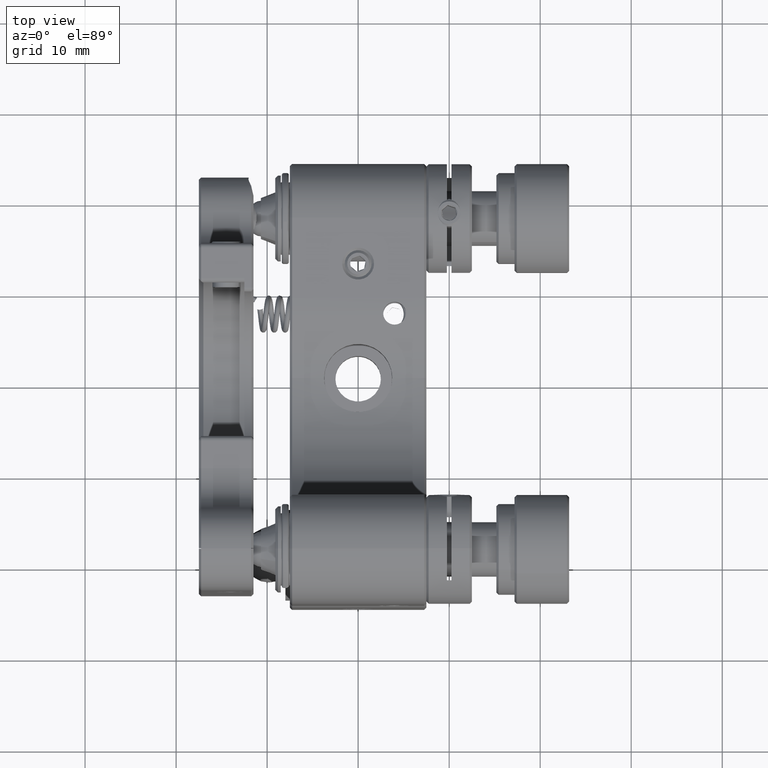
[diagram: clean part render]
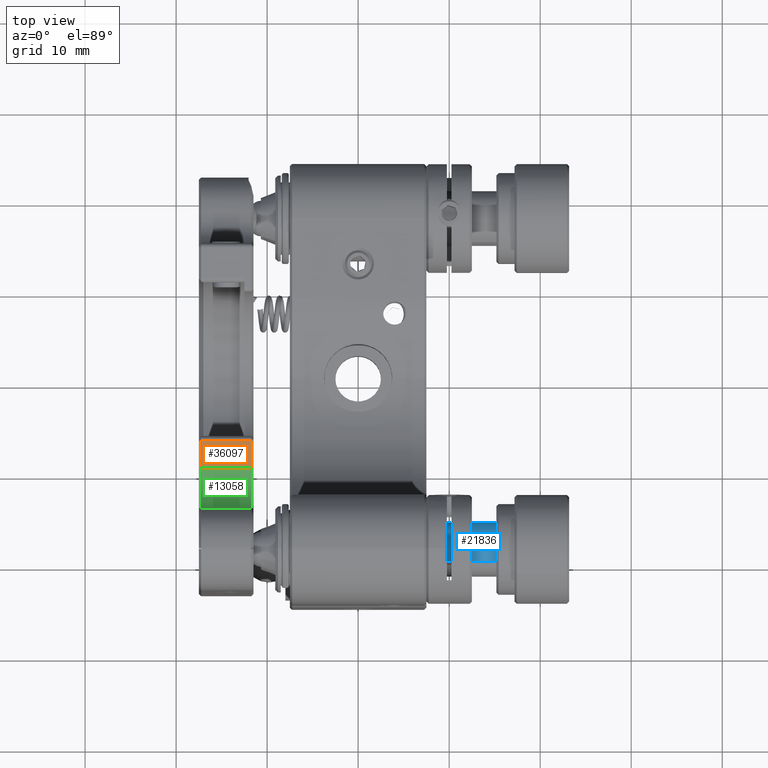
[diagram: same view with three faces highlighted in distinct colors, each labeled with its STEP entity id]
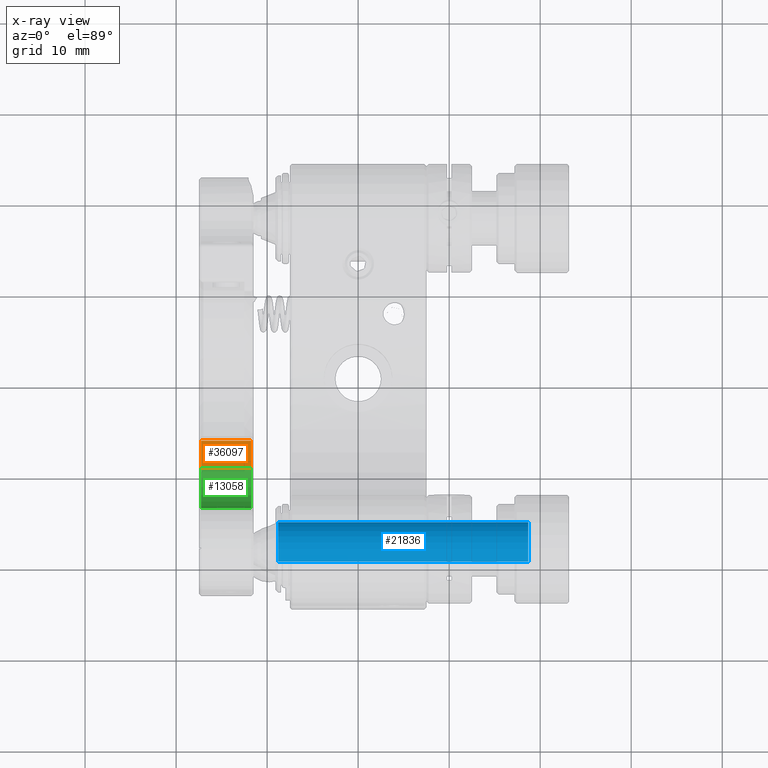
[diagram: x-ray of the same camera — body ghosted, the three highlighted faces saturated]
A machine part, top view with three faces highlighted in distinct colors.
The next image is the same camera in x-ray (body ghosted, the three faces saturated) — at least one of them is partly hidden behind the body in this view.
Their STEP definitions:

[orange] entity #36097 — the highlighted planar face has unit normal (0, 0, -1).
#1057 = DIRECTION ( 'NONE',  ( 0.000000000000000000, 1.000000000000000000, 0.000000000000000000 ) ) ;
#1258 = DIRECTION ( 'NONE',  ( 0.000000000000000000, 0.000000000000000000, -1.000000000000000000 ) ) ;
#3655 = EDGE_CURVE ( 'NONE', #5313, #23533, #23674, .T. ) ;
#3816 = FACE_OUTER_BOUND ( 'NONE', #15280, .T. ) ;
#4205 = CARTESIAN_POINT ( 'NONE',  ( -11.28930289729433056, -9.499999999999994671, 15.00000000000000355 ) ) ;
#4583 = VECTOR ( 'NONE', #23647, 1000.000000000000000 ) ;
#5313 = VERTEX_POINT ( 'NONE', #32686 ) ;
#6353 = LINE ( 'NONE', #20168, #30492 ) ;
#6820 = EDGE_CURVE ( 'NONE', #34444, #7283, #21557, .T. ) ;
#7283 = VERTEX_POINT ( 'NONE', #36687 ) ;
#7618 = CARTESIAN_POINT ( 'NONE',  ( -11.28930289729433056, -5.999999999999992006, 15.00000000000000355 ) ) ;
#10419 = LINE ( 'NONE', #4205, #4583 ) ;
#11471 = ORIENTED_EDGE ( 'NONE', *, *, #13878, .T. ) ;
#13277 = CARTESIAN_POINT ( 'NONE',  ( -11.74999999999999645, -6.499999999999992006, 15.00000000000000355 ) ) ;
#13430 = PLANE ( 'NONE',  #20308 ) ;
#13878 = EDGE_CURVE ( 'NONE', #23533, #34444, #6353, .T. ) ;
#14258 = DIRECTION ( 'NONE',  ( -1.000000000000000000, 0.000000000000000000, -0.000000000000000000 ) ) ;
#15280 = EDGE_LOOP ( 'NONE', ( #26362, #23699, #11471, #26272 ) ) ;
#20168 = CARTESIAN_POINT ( 'NONE',  ( -11.28930289729433056, -6.499999999999992006, 15.00000000000000355 ) ) ;
#20308 = AXIS2_PLACEMENT_3D ( 'NONE', #7618, #1258, #14258 ) ;
#21337 = DIRECTION ( 'NONE',  ( 0.000000000000000000, -1.000000000000000000, 0.000000000000000000 ) ) ;
#21557 = LINE ( 'NONE', #25375, #38798 ) ;
#23533 = VERTEX_POINT ( 'NONE', #13277 ) ;
#23647 = DIRECTION ( 'NONE',  ( -1.000000000000000000, -0.000000000000000000, -0.000000000000000000 ) ) ;
#23674 = LINE ( 'NONE', #39693, #34112 ) ;
#23699 = ORIENTED_EDGE ( 'NONE', *, *, #3655, .T. ) ;
#25077 = EDGE_CURVE ( 'NONE', #5313, #7283, #10419, .T. ) ;
#25375 = CARTESIAN_POINT ( 'NONE',  ( -17.24999999999998579, -9.499999999999994671, 15.00000000000000355 ) ) ;
#26272 = ORIENTED_EDGE ( 'NONE', *, *, #6820, .T. ) ;
#26362 = ORIENTED_EDGE ( 'NONE', *, *, #25077, .F. ) ;
#28396 = CARTESIAN_POINT ( 'NONE',  ( -17.24999999999998579, -6.499999999999992006, 15.00000000000000355 ) ) ;
#30404 = DIRECTION ( 'NONE',  ( -1.000000000000000000, -0.000000000000000000, -0.000000000000000000 ) ) ;
#30492 = VECTOR ( 'NONE', #30404, 1000.000000000000000 ) ;
#32686 = CARTESIAN_POINT ( 'NONE',  ( -11.74999999999999645, -9.499999999999994671, 15.00000000000000355 ) ) ;
#34112 = VECTOR ( 'NONE', #1057, 1000.000000000000000 ) ;
#34444 = VERTEX_POINT ( 'NONE', #28396 ) ;
#36097 = ADVANCED_FACE ( 'NONE', ( #3816 ), #13430, .F. ) ;
#36687 = CARTESIAN_POINT ( 'NONE',  ( -17.24999999999998579, -9.499999999999994671, 15.00000000000000355 ) ) ;
#38798 = VECTOR ( 'NONE', #21337, 1000.000000000000000 ) ;
#39693 = CARTESIAN_POINT ( 'NONE',  ( -11.74999999999999645, -5.999999999999992006, 15.00000000000000355 ) ) ;

[blue] entity #21836 — the highlighted cylindrical surface (edge-blend (fillet) strip) has radius 3 mm, axis along (-1, 0, -0).
#1860 = VERTEX_POINT ( 'NONE', #37016 ) ;
#2059 = CARTESIAN_POINT ( 'NONE',  ( 19.18185424949303908, -19.89787456361175089, 21.15442022001175459 ) ) ;
#2290 = FACE_OUTER_BOUND ( 'NONE', #8091, .T. ) ;
#5483 = CYLINDRICAL_SURFACE ( 'NONE', #30400, 3.000000000000000888 ) ;
#7803 = CARTESIAN_POINT ( 'NONE',  ( -8.788145750506938469, -18.49999999999999289, 18.50000000000000355 ) ) ;
#8091 = EDGE_LOOP ( 'NONE', ( #33887, #17010, #36596, #23159 ) ) ;
#8688 = DIRECTION ( 'NONE',  ( -1.000000000000000000, 0.000000000000000000, -0.000000000000000000 ) ) ;
#9197 = CIRCLE ( 'NONE', #11904, 3.000000000000000888 ) ;
#10231 = EDGE_CURVE ( 'NONE', #35366, #1860, #9197, .T. ) ;
#11904 = AXIS2_PLACEMENT_3D ( 'NONE', #7803, #17643, #40083 ) ;
#14240 = LINE ( 'NONE', #31111, #17185 ) ;
#15304 = DIRECTION ( 'NONE',  ( 0.000000000000000000, -0.4659581878705859603, 0.8848067400039173469 ) ) ;
#17010 = ORIENTED_EDGE ( 'NONE', *, *, #25380, .T. ) ;
#17185 = VECTOR ( 'NONE', #8688, 1000.000000000000000 ) ;
#17344 = DIRECTION ( 'NONE',  ( 0.000000000000000000, 0.4659581878705859603, -0.8848067400039173469 ) ) ;
#17643 = DIRECTION ( 'NONE',  ( 1.000000000000000000, 0.000000000000000000, 0.000000000000000000 ) ) ;
#18504 = CARTESIAN_POINT ( 'NONE',  ( 19.18185424949303908, -18.49999999999999289, 18.50000000000000355 ) ) ;
#19173 = EDGE_CURVE ( 'NONE', #39408, #27219, #26893, .T. ) ;
#21038 = DIRECTION ( 'NONE',  ( -1.000000000000000000, 0.000000000000000000, -0.000000000000000000 ) ) ;
#21659 = CARTESIAN_POINT ( 'NONE',  ( 18.68185424949303908, -17.10212543638823490, 15.84557977998824896 ) ) ;
#21836 = ADVANCED_FACE ( 'NONE', ( #2290 ), #5483, .T. ) ;
#23159 = ORIENTED_EDGE ( 'NONE', *, *, #37293, .F. ) ;
#24148 = AXIS2_PLACEMENT_3D ( 'NONE', #33170, #29555, #17344 ) ;
#25380 = EDGE_CURVE ( 'NONE', #27219, #35366, #14240, .T. ) ;
#26893 = CIRCLE ( 'NONE', #24148, 3.000000000000000888 ) ;
#27219 = VERTEX_POINT ( 'NONE', #21659 ) ;
#28192 = CARTESIAN_POINT ( 'NONE',  ( -8.788145750506938469, -17.10212543638823490, 15.84557977998824896 ) ) ;
#29555 = DIRECTION ( 'NONE',  ( -1.000000000000000000, -0.000000000000000000, -0.000000000000000000 ) ) ;
#30400 = AXIS2_PLACEMENT_3D ( 'NONE', #18504, #31528, #15304 ) ;
#31111 = CARTESIAN_POINT ( 'NONE',  ( 19.18185424949303908, -17.10212543638823490, 15.84557977998824896 ) ) ;
#31528 = DIRECTION ( 'NONE',  ( -1.000000000000000000, 0.000000000000000000, -0.000000000000000000 ) ) ;
#33170 = CARTESIAN_POINT ( 'NONE',  ( 18.68185424949303908, -18.49999999999999289, 18.50000000000000355 ) ) ;
#33887 = ORIENTED_EDGE ( 'NONE', *, *, #19173, .T. ) ;
#33961 = VECTOR ( 'NONE', #21038, 1000.000000000000000 ) ;
#35366 = VERTEX_POINT ( 'NONE', #28192 ) ;
#36596 = ORIENTED_EDGE ( 'NONE', *, *, #10231, .T. ) ;
#37016 = CARTESIAN_POINT ( 'NONE',  ( -8.788145750506938469, -19.89787456361175089, 21.15442022001175459 ) ) ;
#37293 = EDGE_CURVE ( 'NONE', #39408, #1860, #37478, .T. ) ;
#37478 = LINE ( 'NONE', #2059, #33961 ) ;
#38582 = CARTESIAN_POINT ( 'NONE',  ( 18.68185424949303908, -19.89787456361175089, 21.15442022001175459 ) ) ;
#39408 = VERTEX_POINT ( 'NONE', #38582 ) ;
#40083 = DIRECTION ( 'NONE',  ( 0.000000000000000000, 0.4659581878705859603, -0.8848067400039173469 ) ) ;

[green] entity #13058 — the highlighted cylindrical surface (partial cylindrical patch) has radius 4.5 mm, axis along (-1, -0, -0).
#1457 = DIRECTION ( 'NONE',  ( 0.000000000000000000, 0.000000000000000000, 1.000000000000000000 ) ) ;
#1847 = FACE_OUTER_BOUND ( 'NONE', #39666, .T. ) ;
#2309 = CARTESIAN_POINT ( 'NONE',  ( -17.24999999999998579, -9.499999999999994671, 19.50000000000000355 ) ) ;
#4205 = CARTESIAN_POINT ( 'NONE',  ( -11.28930289729433056, -9.499999999999994671, 15.00000000000000355 ) ) ;
#4583 = VECTOR ( 'NONE', #23647, 1000.000000000000000 ) ;
#5313 = VERTEX_POINT ( 'NONE', #32686 ) ;
#5492 = ORIENTED_EDGE ( 'NONE', *, *, #36285, .T. ) ;
#7283 = VERTEX_POINT ( 'NONE', #36687 ) ;
#7348 = AXIS2_PLACEMENT_3D ( 'NONE', #2309, #37311, #1457 ) ;
#7669 = LINE ( 'NONE', #40570, #21437 ) ;
#10419 = LINE ( 'NONE', #4205, #4583 ) ;
#10930 = CARTESIAN_POINT ( 'NONE',  ( -11.74999999999999645, -13.97213595499957250, 19.00000000000000000 ) ) ;
#12839 = ORIENTED_EDGE ( 'NONE', *, *, #41581, .T. ) ;
#13058 = ADVANCED_FACE ( 'NONE', ( #1847 ), #37268, .F. ) ;
#19644 = VERTEX_POINT ( 'NONE', #10930 ) ;
#21437 = VECTOR ( 'NONE', #40787, 1000.000000000000000 ) ;
#23647 = DIRECTION ( 'NONE',  ( -1.000000000000000000, -0.000000000000000000, -0.000000000000000000 ) ) ;
#24387 = CIRCLE ( 'NONE', #7348, 4.500000000000000888 ) ;
#24487 = VERTEX_POINT ( 'NONE', #29448 ) ;
#25077 = EDGE_CURVE ( 'NONE', #5313, #7283, #10419, .T. ) ;
#26976 = DIRECTION ( 'NONE',  ( 1.000000000000000000, -0.000000000000000000, -0.000000000000000000 ) ) ;
#29448 = CARTESIAN_POINT ( 'NONE',  ( -17.24999999999998579, -13.97213595499957250, 19.00000000000000000 ) ) ;
#30177 = CARTESIAN_POINT ( 'NONE',  ( -11.74999999999999645, -9.499999999999994671, 19.50000000000000355 ) ) ;
#31281 = ORIENTED_EDGE ( 'NONE', *, *, #25077, .T. ) ;
#31482 = ORIENTED_EDGE ( 'NONE', *, *, #37923, .T. ) ;
#32535 = AXIS2_PLACEMENT_3D ( 'NONE', #34283, #34710, #40691 ) ;
#32686 = CARTESIAN_POINT ( 'NONE',  ( -11.74999999999999645, -9.499999999999994671, 15.00000000000000355 ) ) ;
#33324 = CIRCLE ( 'NONE', #37404, 4.500000000000000888 ) ;
#34283 = CARTESIAN_POINT ( 'NONE',  ( -11.28930289729433056, -9.499999999999994671, 19.50000000000000355 ) ) ;
#34710 = DIRECTION ( 'NONE',  ( -1.000000000000000000, -0.000000000000000000, -0.000000000000000000 ) ) ;
#36285 = EDGE_CURVE ( 'NONE', #7283, #24487, #24387, .T. ) ;
#36383 = DIRECTION ( 'NONE',  ( 0.000000000000000000, 7.709882115452474222E-16, 1.000000000000000000 ) ) ;
#36687 = CARTESIAN_POINT ( 'NONE',  ( -17.24999999999998579, -9.499999999999994671, 15.00000000000000355 ) ) ;
#37268 = CYLINDRICAL_SURFACE ( 'NONE', #32535, 4.500000000000000888 ) ;
#37311 = DIRECTION ( 'NONE',  ( -1.000000000000000000, 0.000000000000000000, 0.000000000000000000 ) ) ;
#37404 = AXIS2_PLACEMENT_3D ( 'NONE', #30177, #26976, #36383 ) ;
#37923 = EDGE_CURVE ( 'NONE', #19644, #5313, #33324, .T. ) ;
#39666 = EDGE_LOOP ( 'NONE', ( #12839, #31482, #31281, #5492 ) ) ;
#40570 = CARTESIAN_POINT ( 'NONE',  ( -11.28930289729433056, -13.97213595499957250, 19.00000000000000000 ) ) ;
#40691 = DIRECTION ( 'NONE',  ( 0.000000000000000000, 0.000000000000000000, 1.000000000000000000 ) ) ;
#40787 = DIRECTION ( 'NONE',  ( 1.000000000000000000, 0.000000000000000000, 0.000000000000000000 ) ) ;
#41581 = EDGE_CURVE ( 'NONE', #24487, #19644, #7669, .T. ) ;